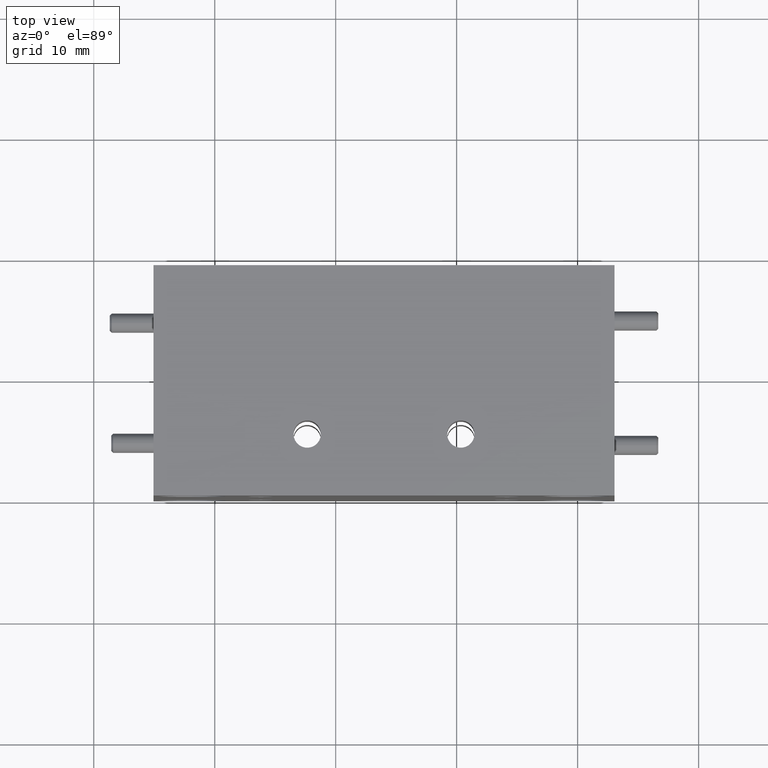
[diagram: clean part render]
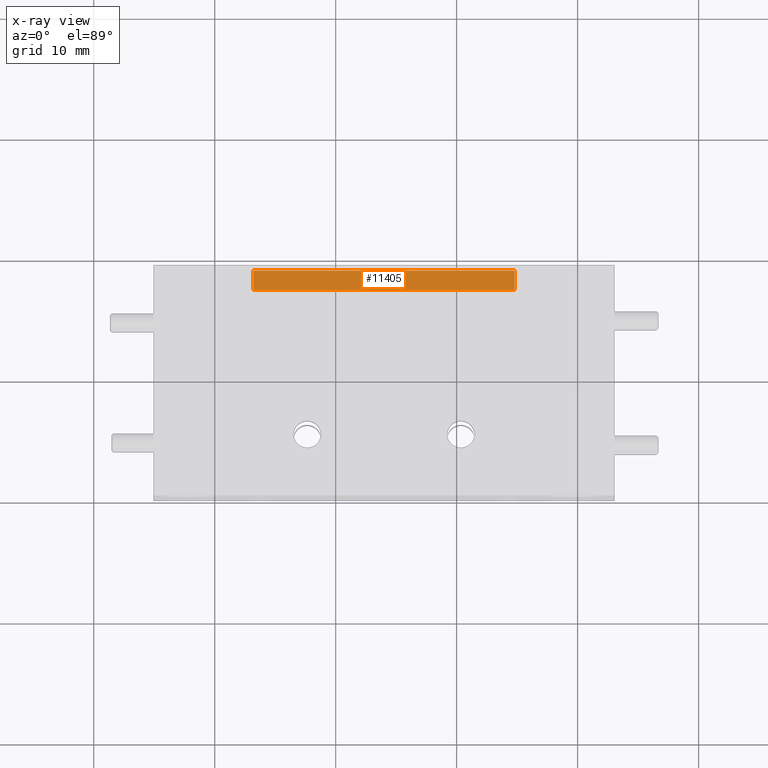
[diagram: x-ray — body ghosted, one internal face saturated and labeled with its STEP entity id]
A machine part, top view, then the same camera in x-ray: the body is ghosted and one INTERNAL B-rep face — a face not visible from any outside direction — is saturated and labeled: STEP entity #11405.
In plain terms, the highlighted planar face has unit normal (-0, 0, -1).
Its self-contained STEP definition (entity closure, byte-faithful):
#80 = EDGE_CURVE ( 'NONE', #7991, #9650, #4416, .T. ) ;
#330 = CARTESIAN_POINT ( 'NONE',  ( 0.5822140963110008500, 0.6870000000000000600, -0.2814233499116480200 ) ) ;
#463 = CARTESIAN_POINT ( 'NONE',  ( -0.2677859036889994000, 0.6870000000000000600, -0.2814233499116478600 ) ) ;
#729 = ORIENTED_EDGE ( 'NONE', *, *, #9597, .T. ) ;
#759 = EDGE_CURVE ( 'NONE', #7201, #9650, #9325, .T. ) ;
#877 = EDGE_LOOP ( 'NONE', ( #11988, #8581, #7182, #729 ) ) ;
#1074 = VERTEX_POINT ( 'NONE', #7835 ) ;
#1308 = DIRECTION ( 'NONE',  ( 0.0000000000000000000, 1.000000000000000000, 0.0000000000000000000 ) ) ;
#3216 = DIRECTION ( 'NONE',  ( -1.000000000000000000, 0.0000000000000000000, 1.606969408037801500E-016 ) ) ;
#3479 = CARTESIAN_POINT ( 'NONE',  ( -0.2677859036889994000, 0.6870000000000000600, -0.2814233499116478600 ) ) ;
#3560 = CARTESIAN_POINT ( 'NONE',  ( -0.2677859036889994000, 0.6870000000000000600, -0.2814233499116478600 ) ) ;
#3836 = VECTOR ( 'NONE', #3216, 39.37007874015748100 ) ;
#4416 = LINE ( 'NONE', #5192, #3836 ) ;
#5098 = PLANE ( 'NONE',  #7728 ) ;
#5192 = CARTESIAN_POINT ( 'NONE',  ( -0.2677859036889994000, 0.7499999999999998900, -0.2814233499116478600 ) ) ;
#5306 = CARTESIAN_POINT ( 'NONE',  ( -0.2677859036889994000, 0.6870000000000000600, -0.2814233499116478600 ) ) ;
#5412 = DIRECTION ( 'NONE',  ( 0.0000000000000000000, 1.000000000000000000, 0.0000000000000000000 ) ) ;
#5783 = EDGE_CURVE ( 'NONE', #1074, #7201, #8856, .T. ) ;
#5918 = CARTESIAN_POINT ( 'NONE',  ( -0.2677859036889994000, 0.7499999999999998900, -0.2814233499116478600 ) ) ;
#6405 = VECTOR ( 'NONE', #5412, 39.37007874015748100 ) ;
#7182 = ORIENTED_EDGE ( 'NONE', *, *, #5783, .F. ) ;
#7201 = VERTEX_POINT ( 'NONE', #3479 ) ;
#7728 = AXIS2_PLACEMENT_3D ( 'NONE', #463, #9807, #11499 ) ;
#7835 = CARTESIAN_POINT ( 'NONE',  ( 0.5822140963110008500, 0.6870000000000000600, -0.2814233499116480200 ) ) ;
#7991 = VERTEX_POINT ( 'NONE', #8337 ) ;
#8337 = CARTESIAN_POINT ( 'NONE',  ( 0.5822140963110008500, 0.7499999999999998900, -0.2814233499116480200 ) ) ;
#8581 = ORIENTED_EDGE ( 'NONE', *, *, #759, .F. ) ;
#8856 = LINE ( 'NONE', #5306, #9287 ) ;
#9287 = VECTOR ( 'NONE', #9934, 39.37007874015748100 ) ;
#9325 = LINE ( 'NONE', #3560, #6405 ) ;
#9597 = EDGE_CURVE ( 'NONE', #1074, #7991, #11951, .T. ) ;
#9650 = VERTEX_POINT ( 'NONE', #5918 ) ;
#9807 = DIRECTION ( 'NONE',  ( -1.606969408037801500E-016, 0.0000000000000000000, -1.000000000000000000 ) ) ;
#9934 = DIRECTION ( 'NONE',  ( -1.000000000000000000, 0.0000000000000000000, 1.606969408037801500E-016 ) ) ;
#11376 = VECTOR ( 'NONE', #1308, 39.37007874015748100 ) ;
#11405 = ADVANCED_FACE ( 'NONE', ( #11901 ), #5098, .F. ) ;
#11499 = DIRECTION ( 'NONE',  ( -1.000000000000000000, 0.0000000000000000000, 1.606969408037801500E-016 ) ) ;
#11901 = FACE_OUTER_BOUND ( 'NONE', #877, .T. ) ;
#11951 = LINE ( 'NONE', #330, #11376 ) ;
#11988 = ORIENTED_EDGE ( 'NONE', *, *, #80, .T. ) ;